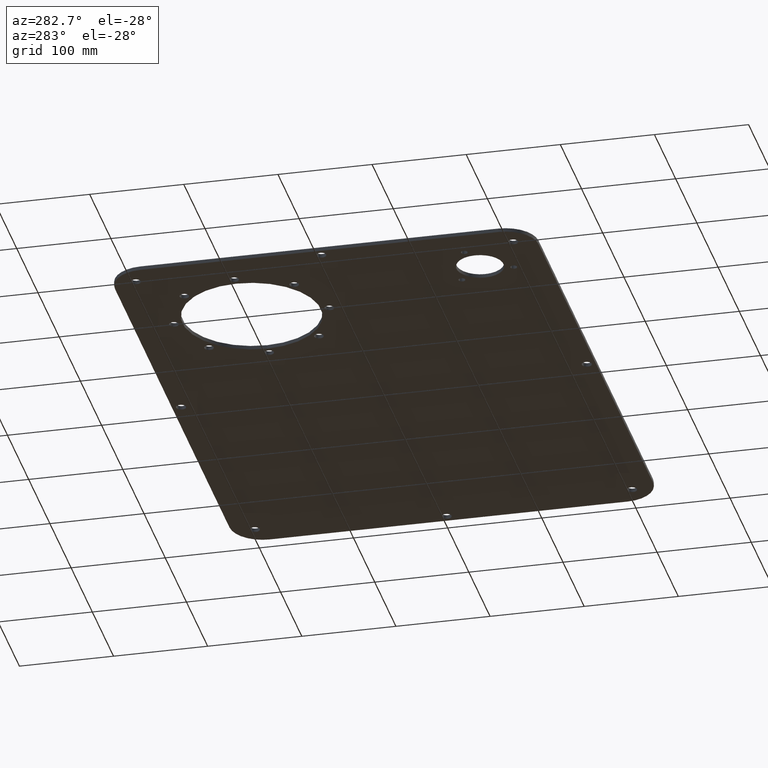
[diagram: clean part render]
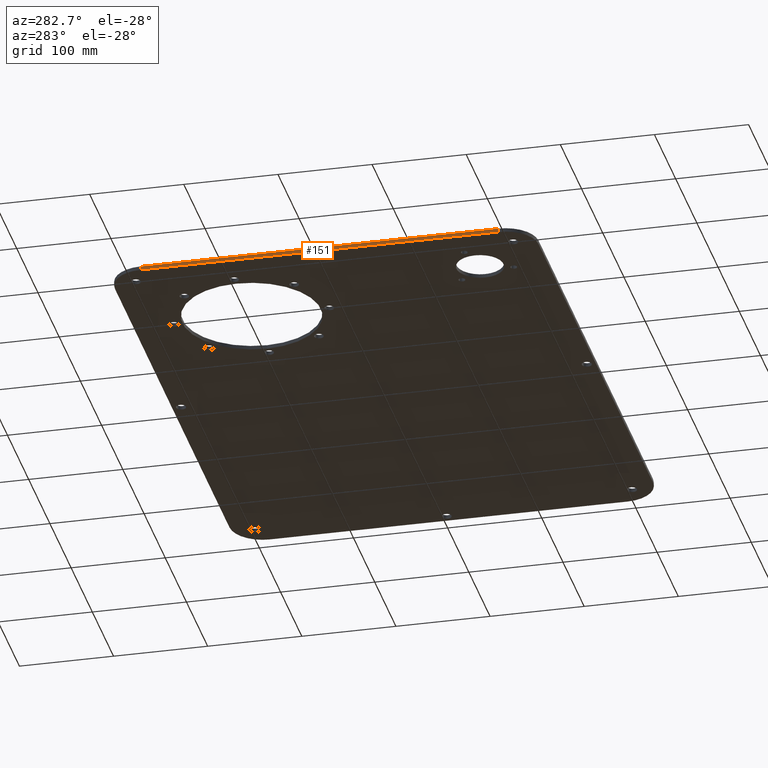
[diagram: same view with one face highlighted and labeled with its STEP entity id]
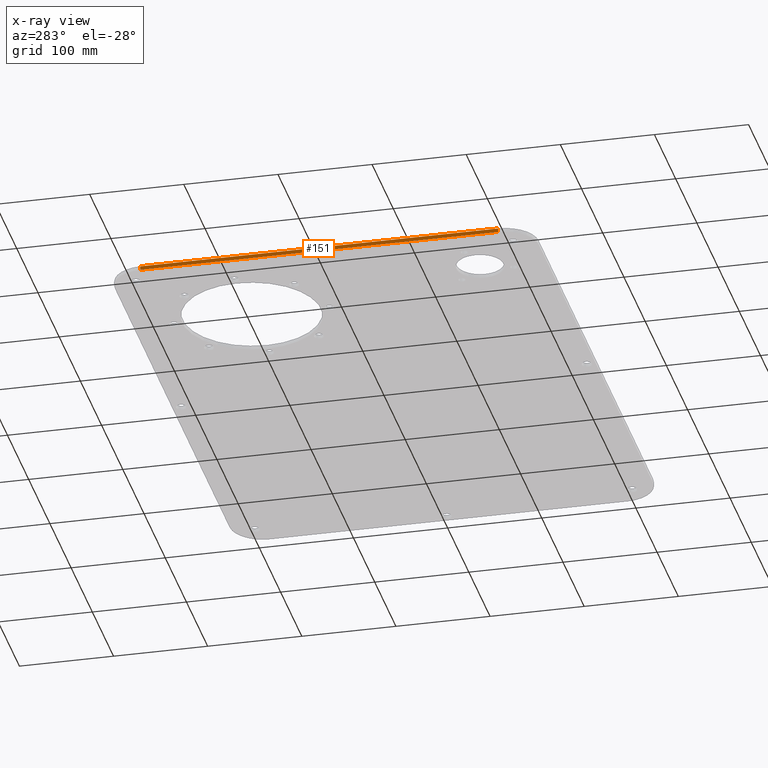
[diagram: x-ray of the same camera — body ghosted, the highlighted face saturated]
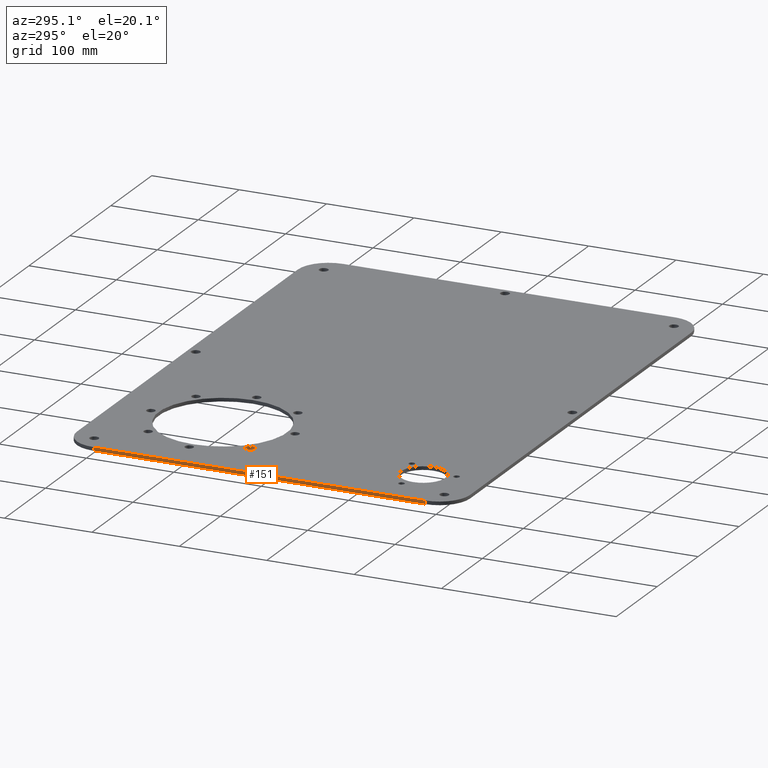
[diagram: same view with one face highlighted and labeled with its STEP entity id]
A machine part, auxiliary view. The second image highlights one B-rep face of the part: STEP entity #151.
The next image is the same camera in x-ray: the body ghosted, the highlighted face saturated — about 0% of this face is hidden behind the body in this view.
A second angle (auxiliary view) of the same face is appended — the face is thin or edge-on in the first view.
In plain terms, the highlighted planar face has unit normal (1, 0, 0).
Its self-contained STEP definition (entity closure, byte-faithful):
#121=PLANE('',#698);
#151=ADVANCED_FACE('',(#187),#121,.F.);
#187=FACE_OUTER_BOUND('',#237,.T.);
#237=EDGE_LOOP('',(#384,#385,#386,#387));
#285=LINE('',#892,#301);
#297=LINE('',#926,#313);
#298=LINE('',#1030,#314);
#299=LINE('',#1031,#315);
#301=VECTOR('',#711,1.);
#313=VECTOR('',#745,1.);
#314=VECTOR('',#870,1.);
#315=VECTOR('',#871,1.);
#384=ORIENTED_EDGE('',*,*,#568,.T.);
#385=ORIENTED_EDGE('',*,*,#509,.F.);
#386=ORIENTED_EDGE('',*,*,#569,.F.);
#387=ORIENTED_EDGE('',*,*,#526,.T.);
#448=VERTEX_POINT('',#886);
#451=VERTEX_POINT('',#891);
#462=VERTEX_POINT('',#925);
#463=VERTEX_POINT('',#927);
#509=EDGE_CURVE('',#451,#448,#285,.T.);
#526=EDGE_CURVE('',#463,#462,#297,.T.);
#568=EDGE_CURVE('',#462,#448,#298,.T.);
#569=EDGE_CURVE('',#463,#451,#299,.T.);
#698=AXIS2_PLACEMENT_3D('',#1032,#872,#873);
#711=DIRECTION('',(0.,0.,-1.));
#745=DIRECTION('',(0.,0.,-1.));
#870=DIRECTION('',(0.,-1.,0.));
#871=DIRECTION('',(0.,-1.,0.));
#872=DIRECTION('',(1.,0.,0.));
#873=DIRECTION('',(0.,0.,-1.));
#886=CARTESIAN_POINT('',(695.,-2690.,0.));
#891=CARTESIAN_POINT('',(695.,-2690.,4.));
#892=CARTESIAN_POINT('',(695.,-2690.,4.));
#925=CARTESIAN_POINT('',(695.,-2310.,0.));
#926=CARTESIAN_POINT('',(695.,-2310.,4.));
#927=CARTESIAN_POINT('',(695.,-2310.,4.));
#1030=CARTESIAN_POINT('',(695.,-2310.,0.));
#1031=CARTESIAN_POINT('',(695.,-2310.,4.));
#1032=CARTESIAN_POINT('',(695.,-2310.,4.));